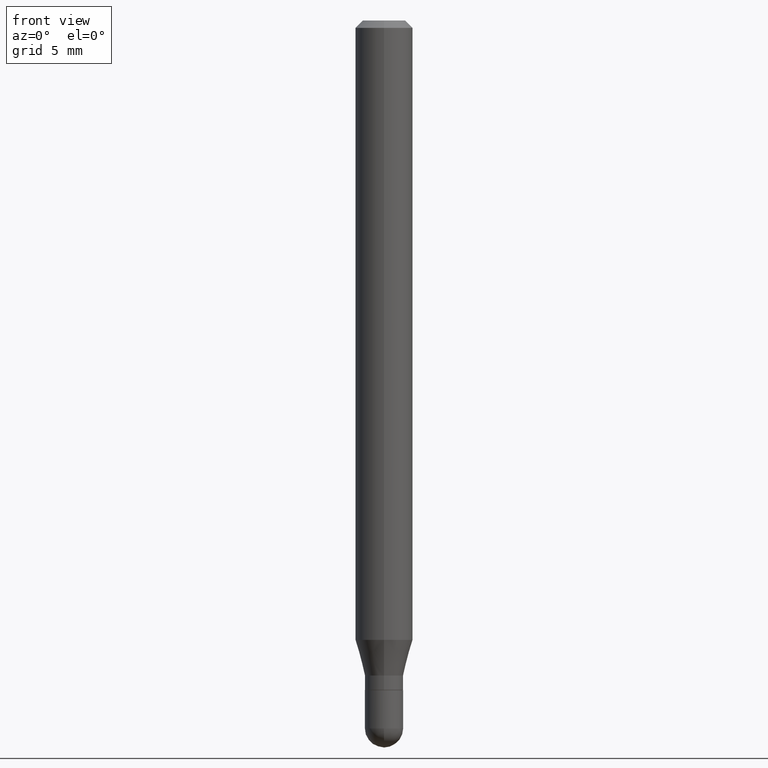
[diagram: clean part render]
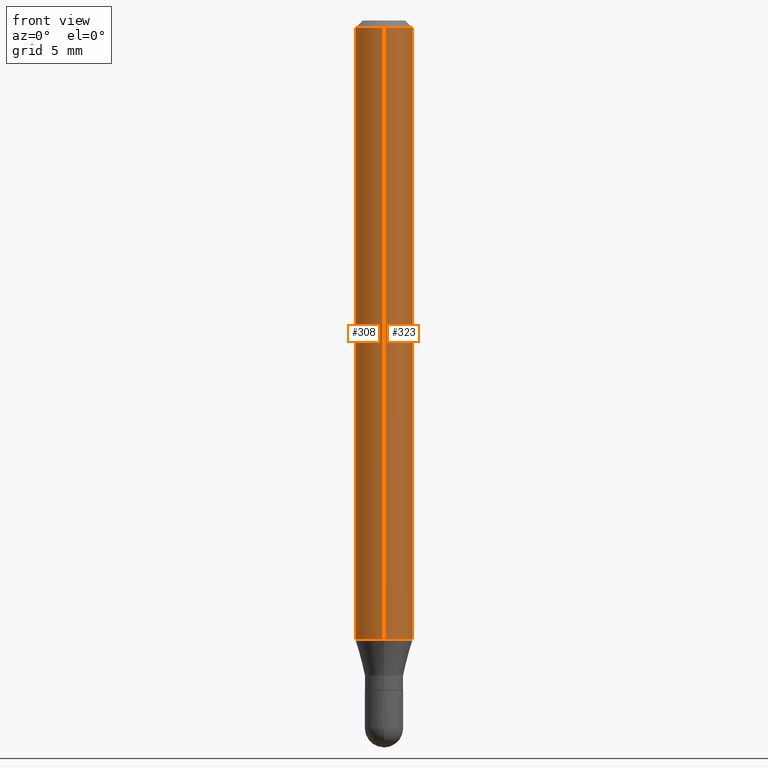
[diagram: same view with one multi-face feature highlighted, each face labeled with its STEP entity id]
A machine part, front view. The highlighted faces form ONE feature: a constant-radius fillet chain: 2 tangent blend faces with common blend radius 1.4999 mm. The faces share edges in the B-rep.
Their STEP definitions:
[1] entity #308 (Cylinder):
#17 = FACE_OUTER_BOUND ( 'NONE', #402, .T. ) ;
#41 = EDGE_CURVE ( 'NONE', #497, #232, #348, .T. ) ;
#45 = ORIENTED_EDGE ( 'NONE', *, *, #166, .T. ) ;
#50 = ORIENTED_EDGE ( 'NONE', *, *, #102, .T. ) ;
#60 = DIRECTION ( 'NONE',  ( -2.445441336735190408E-29, 3.491520676658932931E-15, 1.000000000000000000 ) ) ;
#102 = EDGE_CURVE ( 'NONE', #405, #232, #123, .T. ) ;
#103 = DIRECTION ( 'NONE',  ( -6.982962677686265922E-15, -1.000000000000000000, 4.626330217890369336E-15 ) ) ;
#104 = CARTESIAN_POINT ( 'NONE',  ( -4.123439461173426262E-16, -0.05905000000000441146, -1.274578599090892883 ) ) ;
#107 = VECTOR ( 'NONE', #60, 39.37007874015748143 ) ;
#123 = LINE ( 'NONE', #286, #341 ) ;
#127 = CARTESIAN_POINT ( 'NONE',  ( 3.668162005102807892E-31, -5.237281014988430582E-17, -0.01500000000000009139 ) ) ;
#128 = DIRECTION ( 'NONE',  ( -2.445441336735190408E-29, 3.491520676658932537E-15, 1.000000000000000000 ) ) ;
#139 = CARTESIAN_POINT ( 'NONE',  ( 4.195754854663704558E-16, 0.05904999999999558519, -1.274578599090893327 ) ) ;
#140 = CIRCLE ( 'NONE', #209, 0.05904999999999999832 ) ;
#152 = CARTESIAN_POINT ( 'NONE',  ( -4.123439461173736383E-16, -0.05905000000000005383, -0.01499999999999988495 ) ) ;
#166 = EDGE_CURVE ( 'NONE', #413, #405, #140, .T. ) ;
#170 = LINE ( 'NONE', #465, #107 ) ;
#172 = DIRECTION ( 'NONE',  ( -2.445441336735190408E-29, 3.491520676658932537E-15, 1.000000000000000000 ) ) ;
#205 = CYLINDRICAL_SURFACE ( 'NONE', #496, 0.05904999999999999832 ) ;
#209 = AXIS2_PLACEMENT_3D ( 'NONE', #253, #128, #103 ) ;
#232 = VERTEX_POINT ( 'NONE', #152 ) ;
#249 = AXIS2_PLACEMENT_3D ( 'NONE', #127, #172, #288 ) ;
#253 = CARTESIAN_POINT ( 'NONE',  ( 3.116907193134900210E-29, -4.450217532752829933E-15, -1.274578599090893105 ) ) ;
#264 = CARTESIAN_POINT ( 'NONE',  ( 4.195754854663705051E-16, 0.05904999999999994975, -0.01500000000000029955 ) ) ;
#286 = CARTESIAN_POINT ( 'NONE',  ( -4.123439461173739834E-16, -0.05904999999999999832, 2.061742959567099671E-16 ) ) ;
#288 = DIRECTION ( 'NONE',  ( -6.982962677686265922E-15, -1.000000000000000000, 3.505890868245046092E-15 ) ) ;
#308 = ADVANCED_FACE ( 'NONE', ( #17 ), #205, .T. ) ;
#322 = DIRECTION ( 'NONE',  ( -6.982962677686265922E-15, -1.000000000000000000, 3.491520676658932537E-15 ) ) ;
#324 = ORIENTED_EDGE ( 'NONE', *, *, #41, .F. ) ;
#329 = DIRECTION ( 'NONE',  ( -2.445441336735190408E-29, 3.491520676658932931E-15, 1.000000000000000000 ) ) ;
#341 = VECTOR ( 'NONE', #329, 39.37007874015748143 ) ;
#348 = CIRCLE ( 'NONE', #249, 0.05904999999999999832 ) ;
#356 = CARTESIAN_POINT ( 'NONE',  ( 0.000000000000000000, 0.000000000000000000, 0.000000000000000000 ) ) ;
#400 = EDGE_CURVE ( 'NONE', #413, #497, #170, .T. ) ;
#402 = EDGE_LOOP ( 'NONE', ( #488, #45, #50, #324 ) ) ;
#405 = VERTEX_POINT ( 'NONE', #104 ) ;
#407 = DIRECTION ( 'NONE',  ( -2.445441336735190408E-29, 3.491520676658932537E-15, 1.000000000000000000 ) ) ;
#413 = VERTEX_POINT ( 'NONE', #139 ) ;
#465 = CARTESIAN_POINT ( 'NONE',  ( 4.195754854663390985E-16, 0.05904999999999999832, -2.061742959567099671E-16 ) ) ;
#488 = ORIENTED_EDGE ( 'NONE', *, *, #400, .F. ) ;
#496 = AXIS2_PLACEMENT_3D ( 'NONE', #356, #407, #322 ) ;
#497 = VERTEX_POINT ( 'NONE', #264 ) ;
[2] entity #323 (Cylinder):
#11 = CARTESIAN_POINT ( 'NONE',  ( 0.000000000000000000, 0.000000000000000000, 0.000000000000000000 ) ) ;
#31 = DIRECTION ( 'NONE',  ( -2.445441336735190408E-29, 3.491520676658932537E-15, 1.000000000000000000 ) ) ;
#60 = DIRECTION ( 'NONE',  ( -2.445441336735190408E-29, 3.491520676658932931E-15, 1.000000000000000000 ) ) ;
#102 = EDGE_CURVE ( 'NONE', #405, #232, #123, .T. ) ;
#104 = CARTESIAN_POINT ( 'NONE',  ( -4.123439461173426262E-16, -0.05905000000000441146, -1.274578599090892883 ) ) ;
#107 = VECTOR ( 'NONE', #60, 39.37007874015748143 ) ;
#123 = LINE ( 'NONE', #286, #341 ) ;
#139 = CARTESIAN_POINT ( 'NONE',  ( 4.195754854663704558E-16, 0.05904999999999558519, -1.274578599090893327 ) ) ;
#152 = CARTESIAN_POINT ( 'NONE',  ( -4.123439461173736383E-16, -0.05905000000000005383, -0.01499999999999988495 ) ) ;
#154 = EDGE_CURVE ( 'NONE', #232, #497, #332, .T. ) ;
#170 = LINE ( 'NONE', #465, #107 ) ;
#178 = EDGE_CURVE ( 'NONE', #405, #413, #275, .T. ) ;
#192 = EDGE_LOOP ( 'NONE', ( #447, #240, #450, #398 ) ) ;
#226 = DIRECTION ( 'NONE',  ( -2.445441336735190408E-29, 3.491520676658932537E-15, 1.000000000000000000 ) ) ;
#232 = VERTEX_POINT ( 'NONE', #152 ) ;
#238 = CARTESIAN_POINT ( 'NONE',  ( 3.116907193134900210E-29, -4.450217532752829933E-15, -1.274578599090893105 ) ) ;
#240 = ORIENTED_EDGE ( 'NONE', *, *, #400, .T. ) ;
#264 = CARTESIAN_POINT ( 'NONE',  ( 4.195754854663705051E-16, 0.05904999999999994975, -0.01500000000000029955 ) ) ;
#275 = CIRCLE ( 'NONE', #468, 0.05904999999999999832 ) ;
#286 = CARTESIAN_POINT ( 'NONE',  ( -4.123439461173739834E-16, -0.05904999999999999832, 2.061742959567099671E-16 ) ) ;
#289 = FACE_OUTER_BOUND ( 'NONE', #192, .T. ) ;
#298 = AXIS2_PLACEMENT_3D ( 'NONE', #382, #31, #483 ) ;
#299 = AXIS2_PLACEMENT_3D ( 'NONE', #11, #445, #490 ) ;
#323 = ADVANCED_FACE ( 'NONE', ( #289 ), #471, .T. ) ;
#329 = DIRECTION ( 'NONE',  ( -2.445441336735190408E-29, 3.491520676658932931E-15, 1.000000000000000000 ) ) ;
#332 = CIRCLE ( 'NONE', #298, 0.05904999999999999832 ) ;
#341 = VECTOR ( 'NONE', #329, 39.37007874015748143 ) ;
#382 = CARTESIAN_POINT ( 'NONE',  ( 3.668162005102807892E-31, -5.237281014988430582E-17, -0.01500000000000009139 ) ) ;
#393 = DIRECTION ( 'NONE',  ( -6.982962677686265922E-15, -1.000000000000000000, 4.626330217890369336E-15 ) ) ;
#398 = ORIENTED_EDGE ( 'NONE', *, *, #102, .F. ) ;
#400 = EDGE_CURVE ( 'NONE', #413, #497, #170, .T. ) ;
#405 = VERTEX_POINT ( 'NONE', #104 ) ;
#413 = VERTEX_POINT ( 'NONE', #139 ) ;
#445 = DIRECTION ( 'NONE',  ( -2.445441336735190408E-29, 3.491520676658932537E-15, 1.000000000000000000 ) ) ;
#447 = ORIENTED_EDGE ( 'NONE', *, *, #178, .T. ) ;
#450 = ORIENTED_EDGE ( 'NONE', *, *, #154, .F. ) ;
#465 = CARTESIAN_POINT ( 'NONE',  ( 4.195754854663390985E-16, 0.05904999999999999832, -2.061742959567099671E-16 ) ) ;
#468 = AXIS2_PLACEMENT_3D ( 'NONE', #238, #226, #393 ) ;
#471 = CYLINDRICAL_SURFACE ( 'NONE', #299, 0.05904999999999999832 ) ;
#483 = DIRECTION ( 'NONE',  ( -6.982962677686265922E-15, -1.000000000000000000, 3.505890868245046092E-15 ) ) ;
#490 = DIRECTION ( 'NONE',  ( -6.982962677686265922E-15, -1.000000000000000000, 3.491520676658932537E-15 ) ) ;
#497 = VERTEX_POINT ( 'NONE', #264 ) ;